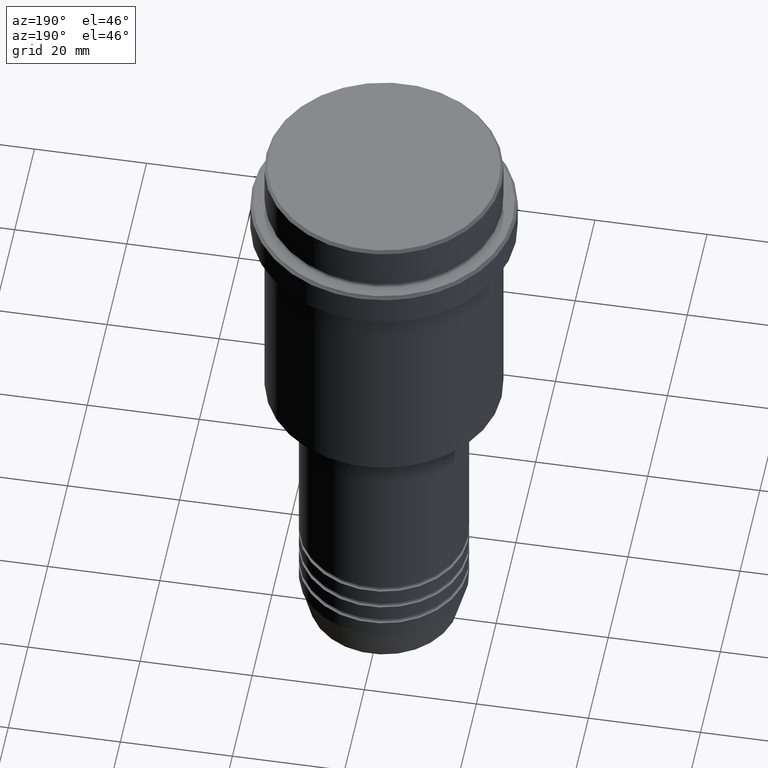
[diagram: clean part render]
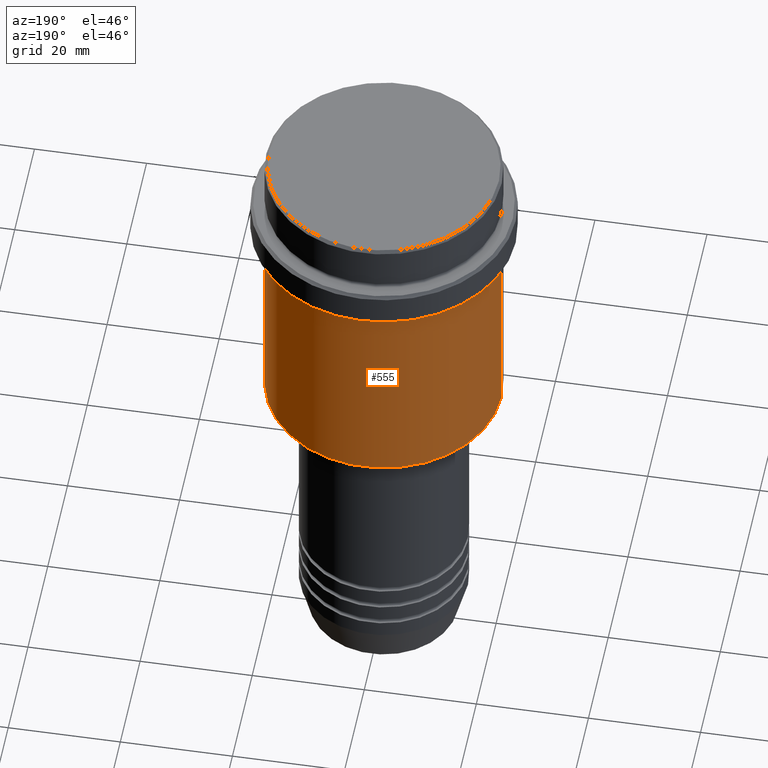
[diagram: same view with one face highlighted and labeled with its STEP entity id]
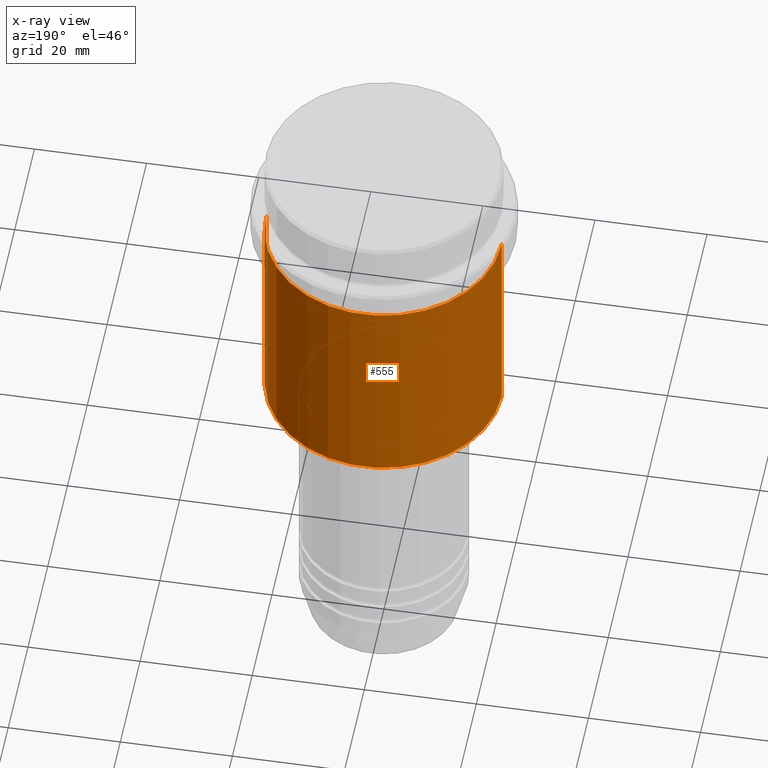
[diagram: x-ray of the same camera — body ghosted, the highlighted face saturated]
A machine part, auxiliary view. The second image highlights one B-rep face of the part: STEP entity #555.
The next image is the same camera in x-ray: the body ghosted, the highlighted face saturated — about 0% of this face is hidden behind the body in this view.
In plain terms, the highlighted cylindrical surface (partial cylindrical patch) has radius 21 mm, axis along (-0, -0, 1).
Its self-contained STEP definition (entity closure, byte-faithful):
#28 = EDGE_LOOP ( 'NONE', ( #1176, #738, #1308, #1241 ) ) ;
#35 = VERTEX_POINT ( 'NONE', #1009 ) ;
#74 = DIRECTION ( 'NONE',  ( 1.000000000000000000, 0.000000000000000000, 0.000000000000000000 ) ) ;
#197 = CARTESIAN_POINT ( 'NONE',  ( -20.99999999999999645, 2.571758278209441267E-15, -54.49999999999998579 ) ) ;
#247 = CARTESIAN_POINT ( 'NONE',  ( 20.99999999999999645, 0.000000000000000000, -54.49999999999998579 ) ) ;
#255 = CARTESIAN_POINT ( 'NONE',  ( 20.99999999999999645, 0.000000000000000000, 0.000000000000000000 ) ) ;
#334 = CIRCLE ( 'NONE', #1142, 20.99999999999999645 ) ;
#354 = DIRECTION ( 'NONE',  ( -0.000000000000000000, -0.000000000000000000, 1.000000000000000000 ) ) ;
#363 = CARTESIAN_POINT ( 'NONE',  ( 0.000000000000000000, 0.000000000000000000, -54.49999999999998579 ) ) ;
#374 = CARTESIAN_POINT ( 'NONE',  ( -20.99999999999999645, 2.571758278209441267E-15, 0.000000000000000000 ) ) ;
#390 = CARTESIAN_POINT ( 'NONE',  ( 0.000000000000000000, 0.000000000000000000, 0.000000000000000000 ) ) ;
#407 = CARTESIAN_POINT ( 'NONE',  ( -20.99999999999999645, 2.571758278209441267E-15, -16.00000000000000355 ) ) ;
#443 = VECTOR ( 'NONE', #599, 1000.000000000000000 ) ;
#469 = EDGE_CURVE ( 'NONE', #908, #861, #1359, .T. ) ;
#484 = EDGE_CURVE ( 'NONE', #1214, #35, #1261, .T. ) ;
#555 = ADVANCED_FACE ( 'NONE', ( #1063 ), #850, .T. ) ;
#599 = DIRECTION ( 'NONE',  ( -0.000000000000000000, -0.000000000000000000, 1.000000000000000000 ) ) ;
#606 = AXIS2_PLACEMENT_3D ( 'NONE', #390, #716, #74 ) ;
#652 = AXIS2_PLACEMENT_3D ( 'NONE', #1411, #753, #1211 ) ;
#662 = EDGE_CURVE ( 'NONE', #35, #861, #1027, .T. ) ;
#702 = DIRECTION ( 'NONE',  ( -0.000000000000000000, -0.000000000000000000, 1.000000000000000000 ) ) ;
#716 = DIRECTION ( 'NONE',  ( -0.000000000000000000, -0.000000000000000000, 1.000000000000000000 ) ) ;
#738 = ORIENTED_EDGE ( 'NONE', *, *, #469, .T. ) ;
#753 = DIRECTION ( 'NONE',  ( -0.000000000000000000, -0.000000000000000000, 1.000000000000000000 ) ) ;
#850 = CYLINDRICAL_SURFACE ( 'NONE', #606, 20.99999999999999645 ) ;
#861 = VERTEX_POINT ( 'NONE', #407 ) ;
#908 = VERTEX_POINT ( 'NONE', #197 ) ;
#930 = DIRECTION ( 'NONE',  ( -1.000000000000000000, 0.000000000000000000, 0.000000000000000000 ) ) ;
#940 = VECTOR ( 'NONE', #354, 1000.000000000000000 ) ;
#1009 = CARTESIAN_POINT ( 'NONE',  ( 20.99999999999999645, 0.000000000000000000, -16.00000000000000355 ) ) ;
#1027 = CIRCLE ( 'NONE', #652, 20.99999999999999645 ) ;
#1063 = FACE_OUTER_BOUND ( 'NONE', #28, .T. ) ;
#1142 = AXIS2_PLACEMENT_3D ( 'NONE', #363, #702, #930 ) ;
#1146 = EDGE_CURVE ( 'NONE', #1214, #908, #334, .T. ) ;
#1176 = ORIENTED_EDGE ( 'NONE', *, *, #1146, .T. ) ;
#1211 = DIRECTION ( 'NONE',  ( 1.000000000000000000, 0.000000000000000000, 0.000000000000000000 ) ) ;
#1214 = VERTEX_POINT ( 'NONE', #247 ) ;
#1241 = ORIENTED_EDGE ( 'NONE', *, *, #484, .F. ) ;
#1261 = LINE ( 'NONE', #255, #443 ) ;
#1308 = ORIENTED_EDGE ( 'NONE', *, *, #662, .F. ) ;
#1359 = LINE ( 'NONE', #374, #940 ) ;
#1411 = CARTESIAN_POINT ( 'NONE',  ( 0.000000000000000000, 0.000000000000000000, -16.00000000000000355 ) ) ;